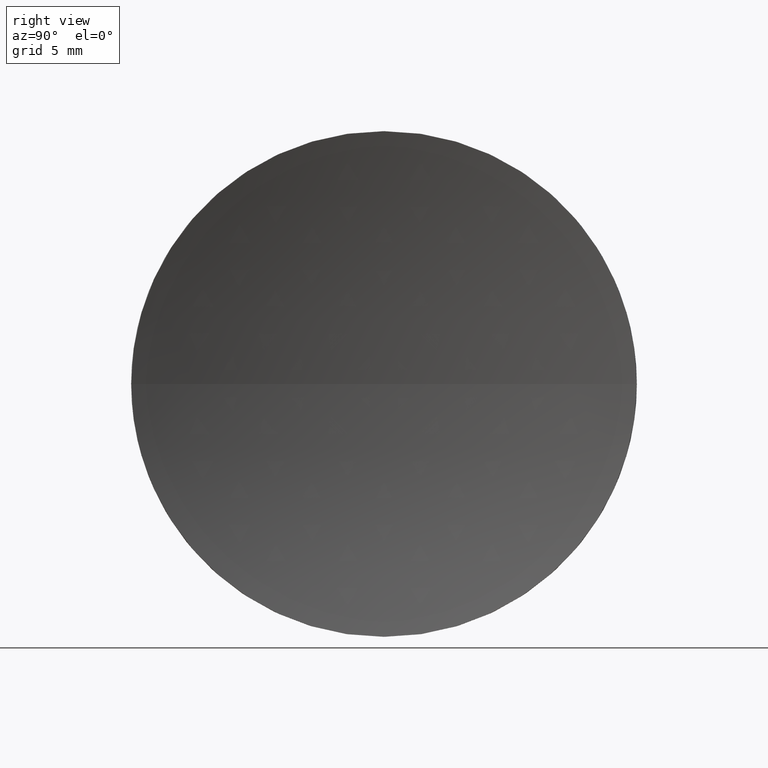
[diagram: clean part render]
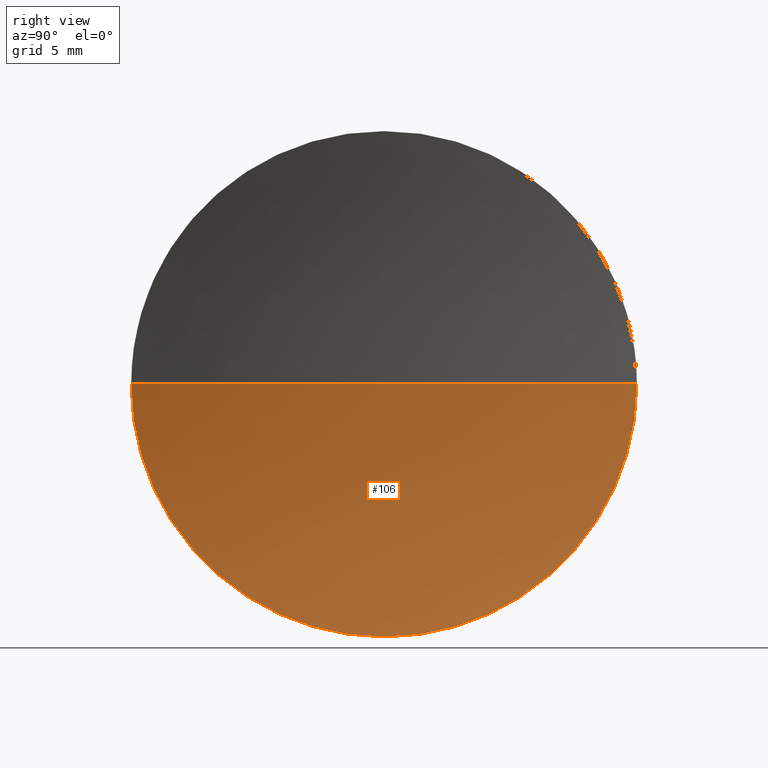
[diagram: same view with one face highlighted and labeled with its STEP entity id]
A machine part, right view. The second image highlights one B-rep face of the part: STEP entity #106.
In plain terms, the highlighted spherical surface has radius 50 mm.
Its self-contained STEP definition (entity closure, byte-faithful):
#3 = AXIS2_PLACEMENT_3D ( 'NONE', #19, #115, #53 ) ;
#7 = CIRCLE ( 'NONE', #128, 50.00000000000000000 ) ;
#8 = AXIS2_PLACEMENT_3D ( 'NONE', #148, #182, #145 ) ;
#9 = CARTESIAN_POINT ( 'NONE',  ( 122.6803637136740500, 69.37802112337243400, 0.0000000000000000000 ) ) ;
#19 = CARTESIAN_POINT ( 'NONE',  ( 171.0926555412667700, 69.37802112337243400, 0.0000000000000000000 ) ) ;
#20 = CIRCLE ( 'NONE', #48, 12.50000000000001100 ) ;
#21 = DIRECTION ( 'NONE',  ( 0.0000000000000000000, -1.224646799147353200E-016, 1.000000000000000000 ) ) ;
#24 = VERTEX_POINT ( 'NONE', #170 ) ;
#29 = VERTEX_POINT ( 'NONE', #124 ) ;
#31 = CARTESIAN_POINT ( 'NONE',  ( 122.6803637136740500, 69.37802112337243400, 0.0000000000000000000 ) ) ;
#38 = CARTESIAN_POINT ( 'NONE',  ( 171.0926555412667700, 69.37802112337243400, 0.0000000000000000000 ) ) ;
#43 = EDGE_CURVE ( 'NONE', #69, #61, #20, .T. ) ;
#44 = DIRECTION ( 'NONE',  ( 0.0000000000000000000, 0.0000000000000000000, 1.000000000000000000 ) ) ;
#46 = CARTESIAN_POINT ( 'NONE',  ( 122.6803637136740500, 69.37802112337243400, -12.50000000000000900 ) ) ;
#48 = AXIS2_PLACEMENT_3D ( 'NONE', #31, #158, #44 ) ;
#51 = DIRECTION ( 'NONE',  ( 0.0000000000000000000, -1.000000000000000000, -1.224646799147353200E-016 ) ) ;
#52 = CIRCLE ( 'NONE', #8, 50.00000000000000000 ) ;
#53 = DIRECTION ( 'NONE',  ( 0.0000000000000000000, -1.000000000000000000, 0.0000000000000000000 ) ) ;
#54 = EDGE_CURVE ( 'NONE', #61, #29, #101, .T. ) ;
#61 = VERTEX_POINT ( 'NONE', #46 ) ;
#69 = VERTEX_POINT ( 'NONE', #155 ) ;
#93 = DIRECTION ( 'NONE',  ( -1.000000000000000000, -0.0000000000000000000, -0.0000000000000000000 ) ) ;
#101 = CIRCLE ( 'NONE', #149, 12.50000000000001100 ) ;
#103 = EDGE_LOOP ( 'NONE', ( #104, #166, #110, #138 ) ) ;
#104 = ORIENTED_EDGE ( 'NONE', *, *, #43, .F. ) ;
#106 = ADVANCED_FACE ( 'NONE', ( #147 ), #133, .F. ) ;
#110 = ORIENTED_EDGE ( 'NONE', *, *, #137, .F. ) ;
#115 = DIRECTION ( 'NONE',  ( 0.0000000000000000000, 0.0000000000000000000, 1.000000000000000000 ) ) ;
#124 = CARTESIAN_POINT ( 'NONE',  ( 122.6803637136740500, 56.87802112337242700, 0.0000000000000000000 ) ) ;
#128 = AXIS2_PLACEMENT_3D ( 'NONE', #38, #21, #51 ) ;
#133 = SPHERICAL_SURFACE ( 'NONE', #3, 50.00000000000000000 ) ;
#137 = EDGE_CURVE ( 'NONE', #29, #24, #52, .T. ) ;
#138 = ORIENTED_EDGE ( 'NONE', *, *, #54, .F. ) ;
#139 = DIRECTION ( 'NONE',  ( 0.0000000000000000000, 0.0000000000000000000, 1.000000000000000000 ) ) ;
#145 = DIRECTION ( 'NONE',  ( -1.000000000000000000, 0.0000000000000000000, 0.0000000000000000000 ) ) ;
#147 = FACE_OUTER_BOUND ( 'NONE', #103, .T. ) ;
#148 = CARTESIAN_POINT ( 'NONE',  ( 171.0926555412667700, 69.37802112337243400, 0.0000000000000000000 ) ) ;
#149 = AXIS2_PLACEMENT_3D ( 'NONE', #9, #93, #139 ) ;
#155 = CARTESIAN_POINT ( 'NONE',  ( 122.6803637136740500, 81.87802112337244900, 1.530808498934192700E-015 ) ) ;
#158 = DIRECTION ( 'NONE',  ( -1.000000000000000000, -0.0000000000000000000, -0.0000000000000000000 ) ) ;
#159 = EDGE_CURVE ( 'NONE', #69, #24, #7, .T. ) ;
#166 = ORIENTED_EDGE ( 'NONE', *, *, #159, .T. ) ;
#170 = CARTESIAN_POINT ( 'NONE',  ( 121.0926555412667700, 69.37802112337243400, 0.0000000000000000000 ) ) ;
#182 = DIRECTION ( 'NONE',  ( 0.0000000000000000000, 0.0000000000000000000, -1.000000000000000000 ) ) ;